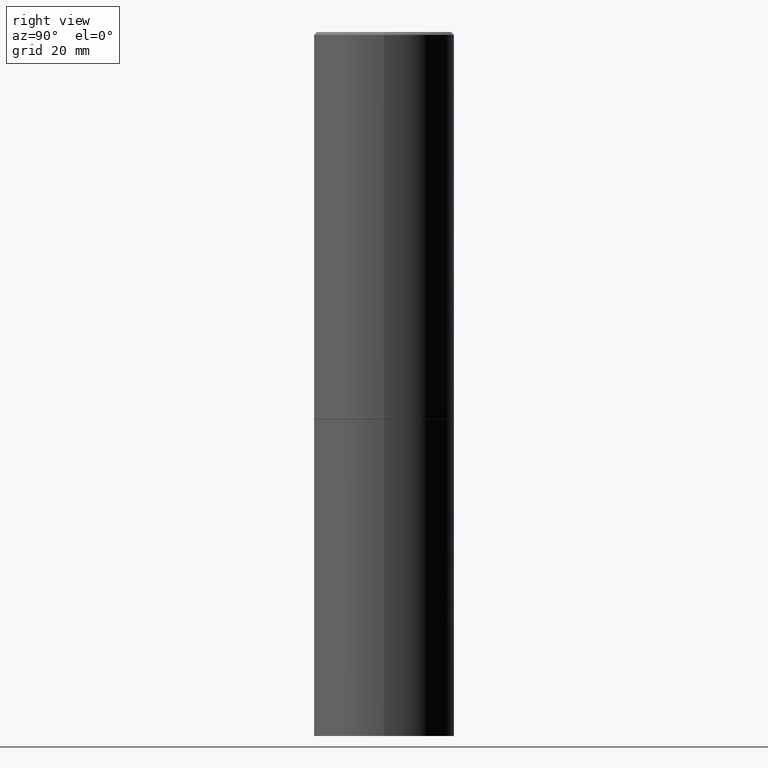
[diagram: clean part render]
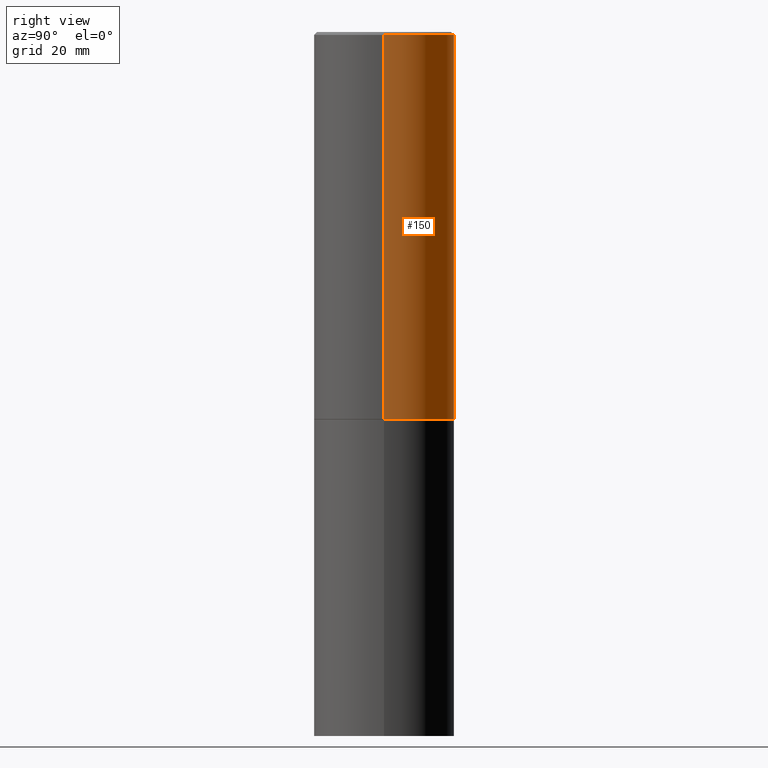
[diagram: same view with one face highlighted and labeled with its STEP entity id]
A machine part, right view. The second image highlights one B-rep face of the part: STEP entity #150.
In plain terms, the highlighted cylindrical surface (partial cylindrical patch) has radius 12.7 mm, axis along (-0, 0, 1).
Its self-contained STEP definition (entity closure, byte-faithful):
#7 = VERTEX_POINT ( 'NONE', #15 ) ;
#8 = ORIENTED_EDGE ( 'NONE', *, *, #23, .F. ) ;
#12 = EDGE_LOOP ( 'NONE', ( #296, #347, #132, #8 ) ) ;
#15 = CARTESIAN_POINT ( 'NONE',  ( 0.5000000000000001110, -1.308956353932294179E-14, -2.749000000000000110 ) ) ;
#23 = EDGE_CURVE ( 'NONE', #7, #349, #48, .T. ) ;
#27 = CARTESIAN_POINT ( 'NONE',  ( 0.000000000000000000, 0.000000000000000000, 0.000000000000000000 ) ) ;
#48 = LINE ( 'NONE', #161, #317 ) ;
#63 = CARTESIAN_POINT ( 'NONE',  ( 0.4999999999999996114, -3.500078625662626318E-15, -0.02000000000000010797 ) ) ;
#71 = VERTEX_POINT ( 'NONE', #213 ) ;
#111 = EDGE_CURVE ( 'NONE', #7, #71, #115, .T. ) ;
#114 = FACE_OUTER_BOUND ( 'NONE', #12, .T. ) ;
#115 = CIRCLE ( 'NONE', #365, 0.5000000000000001110 ) ;
#132 = ORIENTED_EDGE ( 'NONE', *, *, #313, .F. ) ;
#141 = DIRECTION ( 'NONE',  ( -2.445468806185136877E-29, 3.491481338843145188E-15, 1.000000000000000000 ) ) ;
#150 = ADVANCED_FACE ( 'NONE', ( #114 ), #362, .T. ) ;
#161 = CARTESIAN_POINT ( 'NONE',  ( 0.4999999999999998335, -3.491481338843132566E-15, 2.438088387897967336E-29 ) ) ;
#164 = DIRECTION ( 'NONE',  ( -2.445468806185136877E-29, 3.491481338843145188E-15, 1.000000000000000000 ) ) ;
#181 = CARTESIAN_POINT ( 'NONE',  ( 4.890937612370299433E-31, -6.982962677686328587E-17, -0.02000000000000010797 ) ) ;
#201 = CARTESIAN_POINT ( 'NONE',  ( -0.4999999999999998335, 3.552713678800499746E-15, -2.459467545127452330E-29 ) ) ;
#207 = DIRECTION ( 'NONE',  ( 1.000000000000000000, -6.982962677686266711E-15, 0.000000000000000000 ) ) ;
#213 = CARTESIAN_POINT ( 'NONE',  ( -0.5000000000000001110, -1.281242234827831779E-15, -2.749000000000000110 ) ) ;
#215 = AXIS2_PLACEMENT_3D ( 'NONE', #181, #288, #207 ) ;
#222 = DIRECTION ( 'NONE',  ( -2.445468806185136597E-29, 3.491481338843145583E-15, 1.000000000000000000 ) ) ;
#225 = DIRECTION ( 'NONE',  ( -2.445468806185136597E-29, 3.491481338843145583E-15, 1.000000000000000000 ) ) ;
#228 = VERTEX_POINT ( 'NONE', #277 ) ;
#250 = DIRECTION ( 'NONE',  ( 1.000000000000000000, -6.982962677686265133E-15, 0.000000000000000000 ) ) ;
#277 = CARTESIAN_POINT ( 'NONE',  ( -0.4999999999999996114, 3.421651712066267296E-15, -0.02000000000000010797 ) ) ;
#279 = LINE ( 'NONE', #201, #299 ) ;
#280 = CARTESIAN_POINT ( 'NONE',  ( 6.722593748202941159E-29, -9.598082200479808430E-15, -2.749000000000000110 ) ) ;
#288 = DIRECTION ( 'NONE',  ( -2.445468806185136597E-29, 3.491481338843145583E-15, 1.000000000000000000 ) ) ;
#290 = EDGE_CURVE ( 'NONE', #71, #228, #279, .T. ) ;
#296 = ORIENTED_EDGE ( 'NONE', *, *, #111, .T. ) ;
#299 = VECTOR ( 'NONE', #141, 39.37007874015748143 ) ;
#309 = CIRCLE ( 'NONE', #215, 0.4999999999999996114 ) ;
#313 = EDGE_CURVE ( 'NONE', #349, #228, #309, .T. ) ;
#317 = VECTOR ( 'NONE', #164, 39.37007874015748143 ) ;
#324 = AXIS2_PLACEMENT_3D ( 'NONE', #27, #222, #332 ) ;
#332 = DIRECTION ( 'NONE',  ( 1.000000000000000000, -6.982962677686267499E-15, 4.876176775795936353E-29 ) ) ;
#347 = ORIENTED_EDGE ( 'NONE', *, *, #290, .T. ) ;
#349 = VERTEX_POINT ( 'NONE', #63 ) ;
#362 = CYLINDRICAL_SURFACE ( 'NONE', #324, 0.4999999999999998335 ) ;
#365 = AXIS2_PLACEMENT_3D ( 'NONE', #280, #225, #250 ) ;